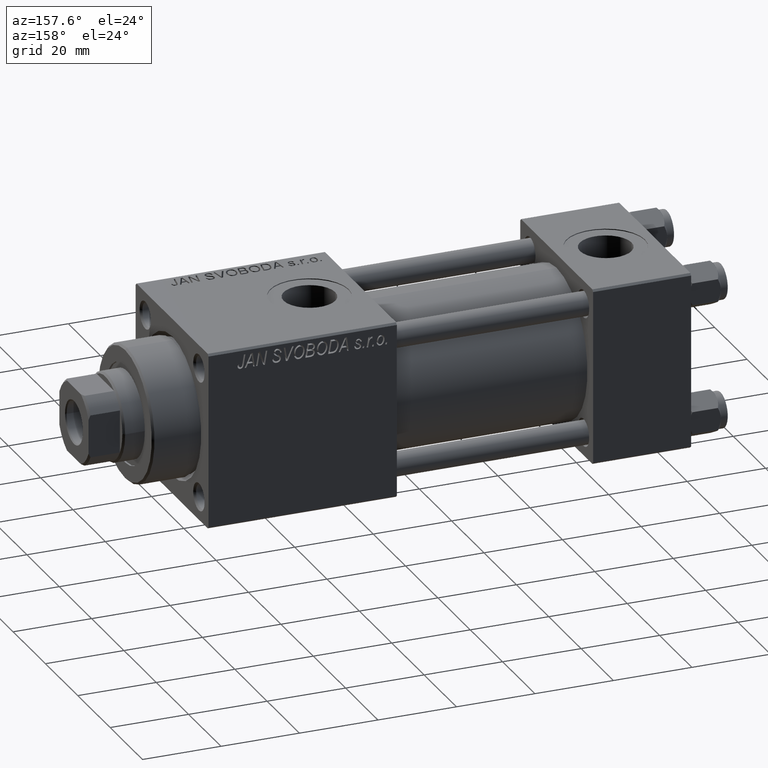
[diagram: clean part render]
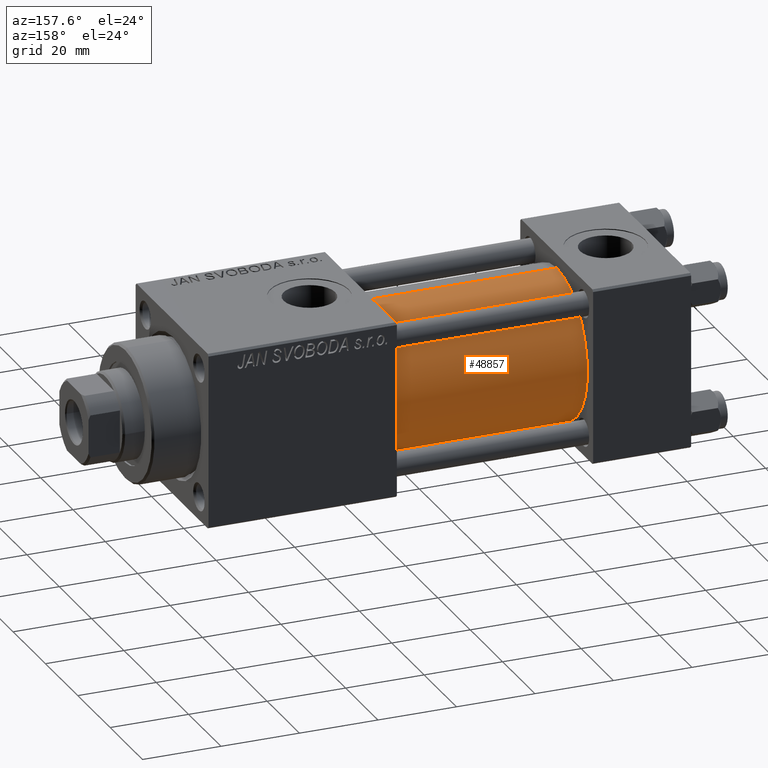
[diagram: same view with one face highlighted and labeled with its STEP entity id]
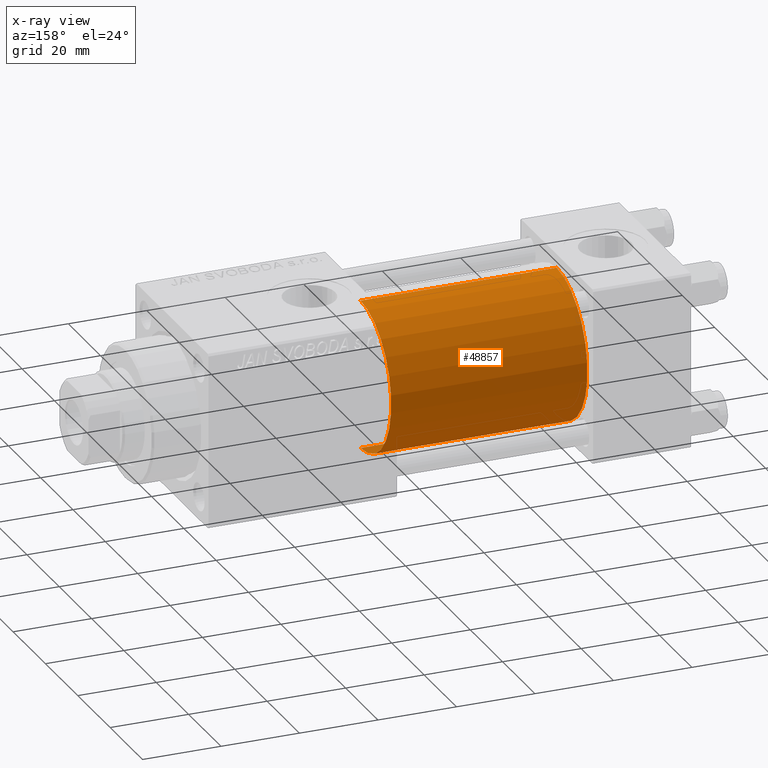
[diagram: x-ray of the same camera — body ghosted, the highlighted face saturated]
A machine part, auxiliary view. The second image highlights one B-rep face of the part: STEP entity #48857.
The next image is the same camera in x-ray: the body ghosted, the highlighted face saturated — about 0% of this face is hidden behind the body in this view.
In plain terms, the highlighted cylindrical surface (partial cylindrical patch) has radius 19 mm, axis along (-1, -0, -0).
Its self-contained STEP definition (entity closure, byte-faithful):
#60 = CARTESIAN_POINT ( 'NONE',  ( 75.00000000000001421, -2.602085213965210642E-15, 19.00000000000000000 ) ) ;
#567 = DIRECTION ( 'NONE',  ( -1.000000000000000000, -0.000000000000000000, -0.000000000000000000 ) ) ;
#2988 = FACE_OUTER_BOUND ( 'NONE', #33008, .T. ) ;
#3472 = VERTEX_POINT ( 'NONE', #20375 ) ;
#4110 = AXIS2_PLACEMENT_3D ( 'NONE', #38923, #31583, #19265 ) ;
#5822 = ORIENTED_EDGE ( 'NONE', *, *, #30159, .F. ) ;
#6846 = DIRECTION ( 'NONE',  ( 0.000000000000000000, 0.000000000000000000, 1.000000000000000000 ) ) ;
#8951 = CARTESIAN_POINT ( 'NONE',  ( 75.00000000000001421, -2.752562955852396712E-16, -19.00000000000000000 ) ) ;
#12135 = ORIENTED_EDGE ( 'NONE', *, *, #50062, .T. ) ;
#12258 = AXIS2_PLACEMENT_3D ( 'NONE', #21586, #13697, #17893 ) ;
#13697 = DIRECTION ( 'NONE',  ( 1.000000000000000000, 0.000000000000000000, 0.000000000000000000 ) ) ;
#15305 = CARTESIAN_POINT ( 'NONE',  ( 25.00000000000000000, -2.602085213965210642E-15, 19.00000000000000000 ) ) ;
#17893 = DIRECTION ( 'NONE',  ( 0.000000000000000000, 0.000000000000000000, -1.000000000000000000 ) ) ;
#18912 = CARTESIAN_POINT ( 'NONE',  ( 25.00000000000000000, -2.602085213965210642E-15, 0.000000000000000000 ) ) ;
#18915 = VERTEX_POINT ( 'NONE', #45145 ) ;
#19265 = DIRECTION ( 'NONE',  ( 0.000000000000000000, 0.000000000000000000, 1.000000000000000000 ) ) ;
#19687 = AXIS2_PLACEMENT_3D ( 'NONE', #18912, #42761, #6846 ) ;
#20375 = CARTESIAN_POINT ( 'NONE',  ( 75.00000000000001421, -2.602085213965210642E-15, 19.00000000000000000 ) ) ;
#21586 = CARTESIAN_POINT ( 'NONE',  ( 75.00000000000001421, -2.602085213965210642E-15, 0.000000000000000000 ) ) ;
#22866 = EDGE_CURVE ( 'NONE', #18915, #3472, #34837, .T. ) ;
#22936 = CYLINDRICAL_SURFACE ( 'NONE', #4110, 19.00000000000000000 ) ;
#23058 = CARTESIAN_POINT ( 'NONE',  ( 25.00000000000000000, -2.752562955852396712E-16, -19.00000000000000000 ) ) ;
#23287 = VERTEX_POINT ( 'NONE', #23058 ) ;
#23936 = DIRECTION ( 'NONE',  ( -1.000000000000000000, -0.000000000000000000, -0.000000000000000000 ) ) ;
#28463 = VECTOR ( 'NONE', #567, 1000.000000000000000 ) ;
#28651 = LINE ( 'NONE', #8951, #28463 ) ;
#30159 = EDGE_CURVE ( 'NONE', #3472, #46334, #47245, .T. ) ;
#31583 = DIRECTION ( 'NONE',  ( -1.000000000000000000, -0.000000000000000000, -0.000000000000000000 ) ) ;
#33008 = EDGE_LOOP ( 'NONE', ( #46877, #12135, #37887, #5822 ) ) ;
#34837 = CIRCLE ( 'NONE', #12258, 19.00000000000000000 ) ;
#36068 = EDGE_CURVE ( 'NONE', #23287, #46334, #51483, .T. ) ;
#37887 = ORIENTED_EDGE ( 'NONE', *, *, #36068, .T. ) ;
#38923 = CARTESIAN_POINT ( 'NONE',  ( 75.00000000000001421, -2.602085213965210642E-15, 0.000000000000000000 ) ) ;
#42761 = DIRECTION ( 'NONE',  ( 1.000000000000000000, -0.000000000000000000, 0.000000000000000000 ) ) ;
#43372 = VECTOR ( 'NONE', #23936, 1000.000000000000000 ) ;
#45145 = CARTESIAN_POINT ( 'NONE',  ( 75.00000000000001421, -2.752562955852396712E-16, -19.00000000000000000 ) ) ;
#46334 = VERTEX_POINT ( 'NONE', #15305 ) ;
#46877 = ORIENTED_EDGE ( 'NONE', *, *, #22866, .F. ) ;
#47245 = LINE ( 'NONE', #60, #43372 ) ;
#48857 = ADVANCED_FACE ( 'NONE', ( #2988 ), #22936, .T. ) ;
#50062 = EDGE_CURVE ( 'NONE', #18915, #23287, #28651, .T. ) ;
#51483 = CIRCLE ( 'NONE', #19687, 19.00000000000000000 ) ;